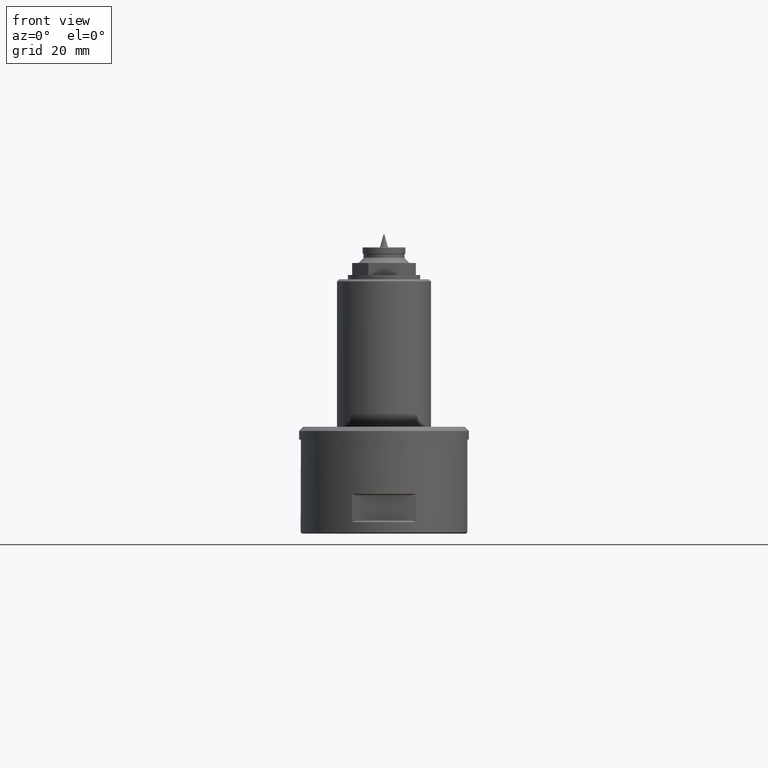
[diagram: clean part render]
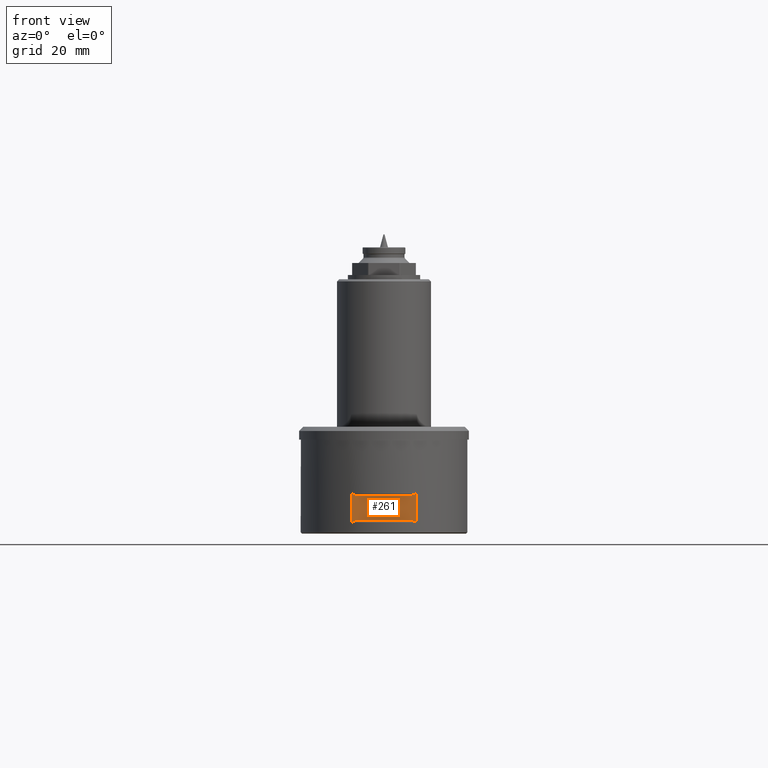
[diagram: same view with one face highlighted and labeled with its STEP entity id]
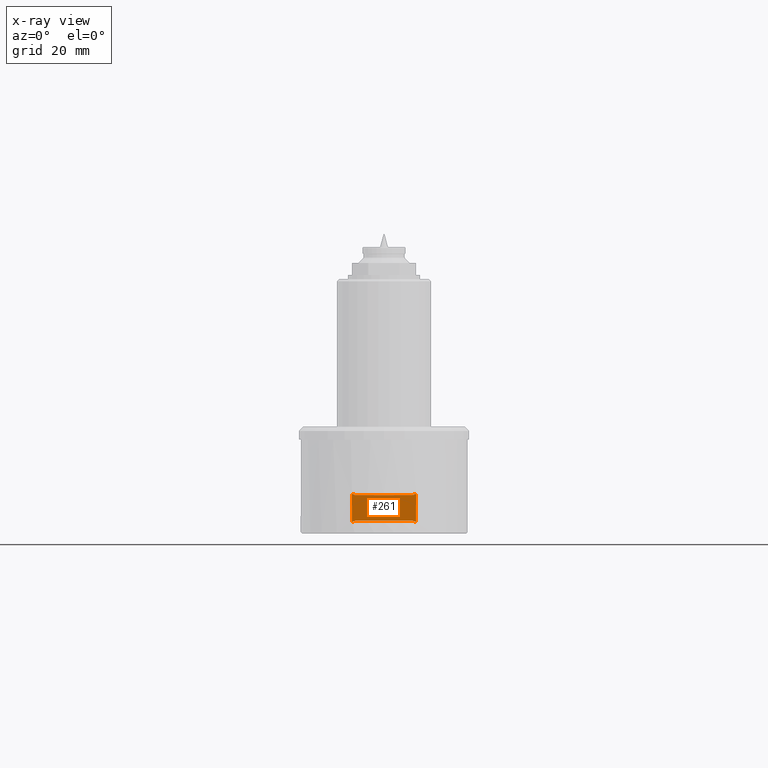
[diagram: x-ray of the same camera — body ghosted, the highlighted face saturated]
A machine part, front view. The second image highlights one B-rep face of the part: STEP entity #261.
The next image is the same camera in x-ray: the body ghosted, the highlighted face saturated — about 0% of this face is hidden behind the body in this view.
In plain terms, the highlighted planar face has unit normal (0, 1, 0).
Its self-contained STEP definition (entity closure, byte-faithful):
#70=PLANE('',#1208);
#116=LINE('',#2112,#160);
#117=LINE('',#2117,#161);
#118=LINE('',#2125,#162);
#119=LINE('',#2132,#163);
#160=VECTOR('',#1463,1.);
#161=VECTOR('',#1468,1.);
#162=VECTOR('',#1469,1.);
#163=VECTOR('',#1470,1.);
#200=FACE_OUTER_BOUND('',#469,.T.);
#261=ADVANCED_FACE('',(#200),#70,.F.);
#335=B_SPLINE_CURVE_WITH_KNOTS('',3,(#2120,#2121,#2122,#2123),
 .UNSPECIFIED.,.F.,.F.,(4,4),(0.,1.),.UNSPECIFIED.);
#336=B_SPLINE_CURVE_WITH_KNOTS('',3,(#2127,#2128,#2129,#2130),
 .UNSPECIFIED.,.F.,.F.,(4,4),(0.,1.),.UNSPECIFIED.);
#337=B_SPLINE_CURVE_WITH_KNOTS('',3,(#2134,#2135,#2136,#2137),
 .UNSPECIFIED.,.F.,.F.,(4,4),(0.,1.),.UNSPECIFIED.);
#338=B_SPLINE_CURVE_WITH_KNOTS('',3,(#2138,#2139,#2140,#2141),
 .UNSPECIFIED.,.F.,.F.,(4,4),(0.,1.),.UNSPECIFIED.);
#469=EDGE_LOOP('',(#658,#659,#660,#661,#662,#663,#664,#665));
#658=ORIENTED_EDGE('',*,*,#1013,.F.);
#659=ORIENTED_EDGE('',*,*,#1014,.T.);
#660=ORIENTED_EDGE('',*,*,#1015,.T.);
#661=ORIENTED_EDGE('',*,*,#1016,.T.);
#662=ORIENTED_EDGE('',*,*,#1017,.F.);
#663=ORIENTED_EDGE('',*,*,#1018,.T.);
#664=ORIENTED_EDGE('',*,*,#1011,.T.);
#665=ORIENTED_EDGE('',*,*,#1019,.T.);
#885=VERTEX_POINT('',#2113);
#886=VERTEX_POINT('',#2114);
#887=VERTEX_POINT('',#2118);
#888=VERTEX_POINT('',#2119);
#889=VERTEX_POINT('',#2124);
#890=VERTEX_POINT('',#2126);
#891=VERTEX_POINT('',#2131);
#892=VERTEX_POINT('',#2133);
#1011=EDGE_CURVE('',#885,#886,#116,.T.);
#1013=EDGE_CURVE('',#887,#888,#117,.T.);
#1014=EDGE_CURVE('',#887,#889,#335,.T.);
#1015=EDGE_CURVE('',#889,#890,#118,.T.);
#1016=EDGE_CURVE('',#890,#891,#336,.T.);
#1017=EDGE_CURVE('',#892,#891,#119,.T.);
#1018=EDGE_CURVE('',#892,#885,#337,.T.);
#1019=EDGE_CURVE('',#886,#888,#338,.T.);
#1208=AXIS2_PLACEMENT_3D('',#2142,#1471,#1472);
#1463=DIRECTION('',(-1.,0.,0.));
#1468=DIRECTION('',(0.,0.,1.));
#1469=DIRECTION('',(1.,0.,0.));
#1470=DIRECTION('',(0.,0.,-1.));
#1471=DIRECTION('',(0.,1.,0.));
#1472=DIRECTION('',(0.,0.,1.));
#2112=CARTESIAN_POINT('',(-8.07749999998543,-18.,8.99999999998455));
#2113=CARTESIAN_POINT('',(6.68131723539604,-18.,8.99999999998455));
#2114=CARTESIAN_POINT('',(-6.68131723539604,-18.,8.99999999998455));
#2117=CARTESIAN_POINT('',(-7.50000000000002,-18.,0.));
#2118=CARTESIAN_POINT('',(-7.50000000000002,-18.,2.69999999999999));
#2119=CARTESIAN_POINT('',(-7.50000000000002,-18.,9.29999999998456));
#2120=CARTESIAN_POINT('',(-7.50000000000002,-18.,2.69999999999999));
#2121=CARTESIAN_POINT('',(-7.2287329713317,-18.,2.80433347256473));
#2122=CARTESIAN_POINT('',(-6.95581167871184,-18.,2.90447997629446));
#2123=CARTESIAN_POINT('',(-6.68131723539604,-18.,2.99999999999999));
#2124=CARTESIAN_POINT('',(-6.68131723539604,-18.,2.99999999999999));
#2125=CARTESIAN_POINT('',(8.07749999998546,-18.,2.99999999999999));
#2126=CARTESIAN_POINT('',(6.68131723539604,-18.,2.99999999999999));
#2127=CARTESIAN_POINT('',(6.68131723539604,-18.,2.99999999999999));
#2128=CARTESIAN_POINT('',(6.95581167871184,-18.,2.90447997629446));
#2129=CARTESIAN_POINT('',(7.2287329713317,-18.,2.80433347256473));
#2130=CARTESIAN_POINT('',(7.50000000000002,-18.,2.69999999999999));
#2131=CARTESIAN_POINT('',(7.50000000000002,-18.,2.69999999999999));
#2132=CARTESIAN_POINT('',(7.50000000000002,-18.,0.));
#2133=CARTESIAN_POINT('',(7.50000000000002,-18.,9.29999999998456));
#2134=CARTESIAN_POINT('',(7.50000000000002,-18.,9.29999999998456));
#2135=CARTESIAN_POINT('',(7.2287329713317,-18.,9.19566652741982));
#2136=CARTESIAN_POINT('',(6.95581167871184,-18.,9.09552002369009));
#2137=CARTESIAN_POINT('',(6.68131723539604,-18.,8.99999999998455));
#2138=CARTESIAN_POINT('',(-6.68131723539604,-18.,8.99999999998455));
#2139=CARTESIAN_POINT('',(-6.95581167871184,-18.,9.09552002369009));
#2140=CARTESIAN_POINT('',(-7.2287329713317,-18.,9.19566652741982));
#2141=CARTESIAN_POINT('',(-7.50000000000002,-18.,9.29999999998456));
#2142=CARTESIAN_POINT('',(0.,-18.,0.));